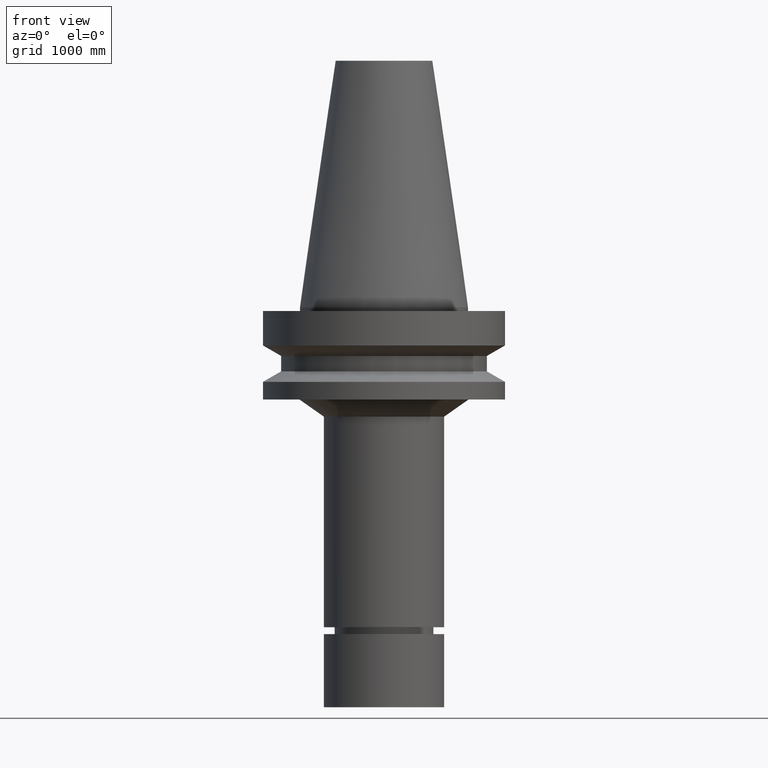
[diagram: clean part render]
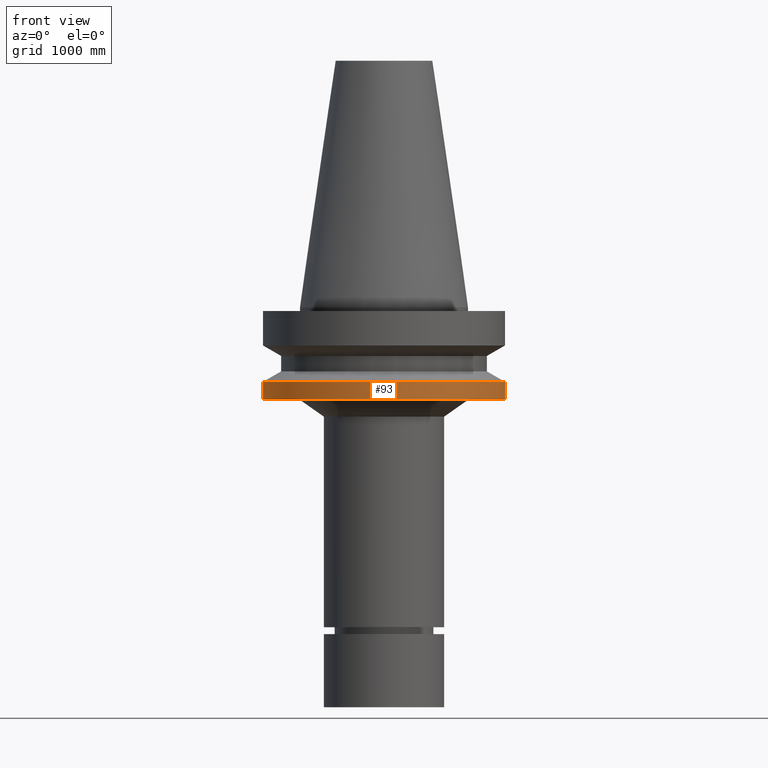
[diagram: same view with one face highlighted and labeled with its STEP entity id]
A machine part, front view. The second image highlights one B-rep face of the part: STEP entity #93.
In plain terms, the highlighted cylindrical surface (bore or boss wall) has radius 1270 mm, axis along (-0, -0, 1).
Its self-contained STEP definition (entity closure, byte-faithful):
#90=EDGE_CURVE('Unnamed[1]',#225,#225,#226,.T.);
#93=ADVANCED_FACE('Unnamed[1]',(#229,#230),#231,.T.);
#131=EDGE_CURVE('Unnamed[1]',#288,#288,#289,.T.);
#225=VERTEX_POINT('',#407);
#226=CIRCLE('',#408,50.0);
#229=FACE_BOUND('',#412,.T.);
#230=FACE_BOUND('',#413,.T.);
#231=CYLINDRICAL_SURFACE('',#414,50.0);
#288=VERTEX_POINT('',#486);
#289=CIRCLE('',#487,50.0);
#407=CARTESIAN_POINT('',(1.87983283669119E-015,50.0,-30.7000000000001));
#408=AXIS2_PLACEMENT_3D('',#607,#608,#609);
#412=EDGE_LOOP('',(#611));
#413=EDGE_LOOP('',(#612));
#414=AXIS2_PLACEMENT_3D('',#613,#614,#615);
#486=CARTESIAN_POINT('',(2.32682891837996E-015,50.0,-37.9999999999998));
#487=AXIS2_PLACEMENT_3D('',#679,#680,#681);
#607=CARTESIAN_POINT('',(1.87983283669119E-015,1.66453799590967E-014,-30.7));
#608=DIRECTION('',(-6.12323399573677E-017,-2.72265846766671E-017,1.0));
#609=DIRECTION('',(-6.49430021956856E-033,1.0,2.72265846766671E-017));
#611=ORIENTED_EDGE('',*,*,#90,.F.);
#612=ORIENTED_EDGE('',*,*,#131,.T.);
#613=CARTESIAN_POINT('',(2.10333087753557E-015,1.67447569931664E-014,-34.3499999999999));
#614=DIRECTION('',(-6.12323399573677E-017,-2.72265846766671E-017,1.0));
#615=DIRECTION('',(-6.49430021956856E-033,1.0,2.72265846766671E-017));
#679=CARTESIAN_POINT('',(2.32682891837996E-015,1.68441340272361E-014,-37.9999999999998));
#680=DIRECTION('',(-6.12323399573677E-017,-2.72265846766671E-017,1.0));
#681=DIRECTION('',(-6.49430021956856E-033,1.0,2.72265846766671E-017));